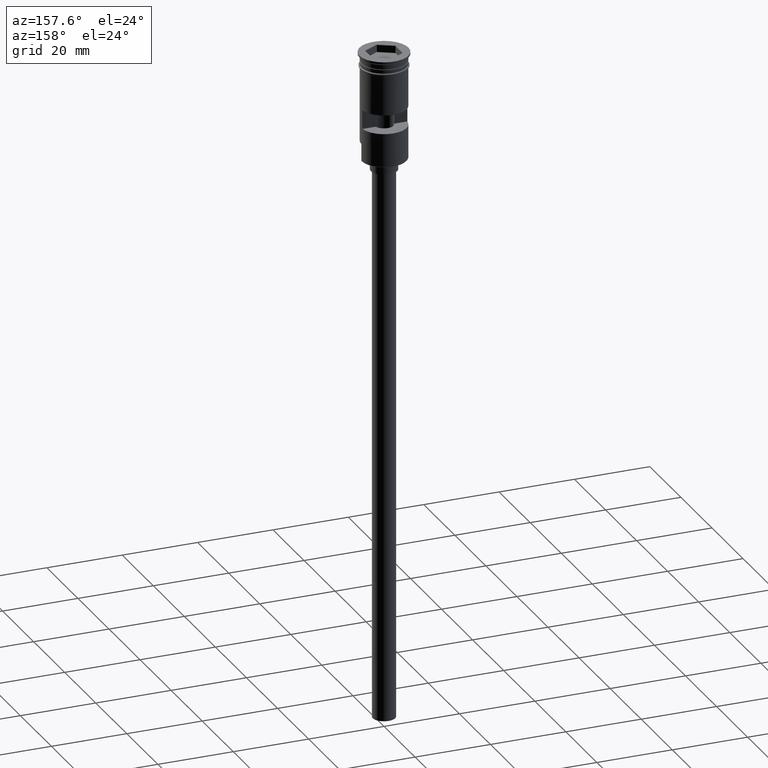
[diagram: clean part render]
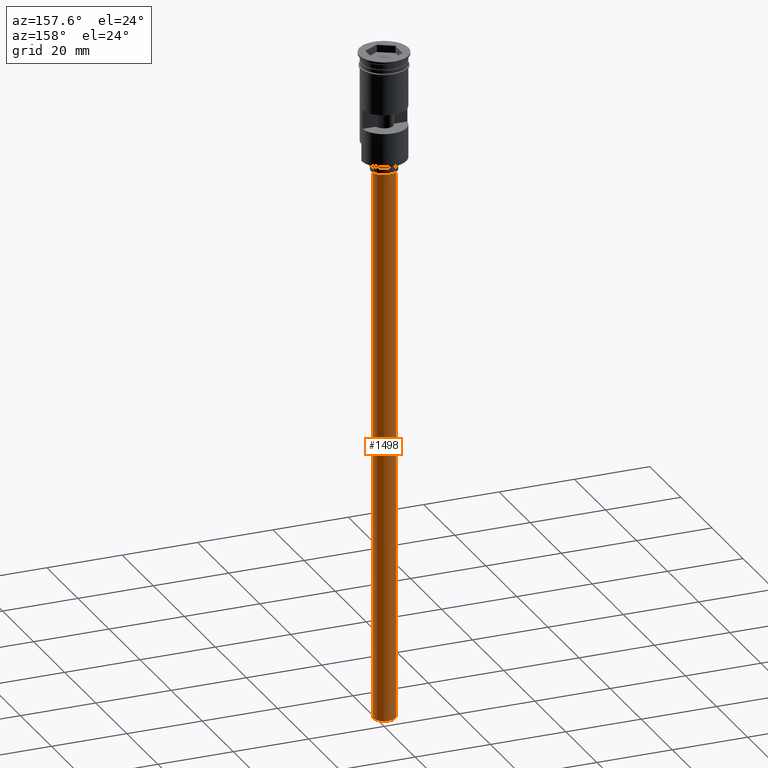
[diagram: same view with one face highlighted and labeled with its STEP entity id]
A machine part, auxiliary view. The second image highlights one B-rep face of the part: STEP entity #1498.
In plain terms, the highlighted cylindrical surface (edge-blend (fillet) strip) has radius 3 mm, axis along (-0, -0, 1).
Its self-contained STEP definition (entity closure, byte-faithful):
#12 = CYLINDRICAL_SURFACE ( 'NONE', #840, 3.000000000000000444 ) ;
#36 = FACE_OUTER_BOUND ( 'NONE', #852, .T. ) ;
#94 = LINE ( 'NONE', #582, #115 ) ;
#115 = VECTOR ( 'NONE', #1227, 1000.000000000000000 ) ;
#116 = CARTESIAN_POINT ( 'NONE',  ( 0.000000000000000000, 0.000000000000000000, -178.5000000000000000 ) ) ;
#126 = CARTESIAN_POINT ( 'NONE',  ( -3.000000000000000444, 3.673940397442060361E-16, -31.50000000000000000 ) ) ;
#130 = DIRECTION ( 'NONE',  ( 0.000000000000000000, 0.000000000000000000, -1.000000000000000000 ) ) ;
#183 = VECTOR ( 'NONE', #841, 1000.000000000000000 ) ;
#330 = ORIENTED_EDGE ( 'NONE', *, *, #1382, .T. ) ;
#375 = VERTEX_POINT ( 'NONE', #126 ) ;
#382 = DIRECTION ( 'NONE',  ( -0.000000000000000000, -0.000000000000000000, 1.000000000000000000 ) ) ;
#466 = CIRCLE ( 'NONE', #639, 3.000000000000000444 ) ;
#467 = ORIENTED_EDGE ( 'NONE', *, *, #781, .F. ) ;
#582 = CARTESIAN_POINT ( 'NONE',  ( 3.000000000000000444, 0.000000000000000000, -178.5000000000000000 ) ) ;
#639 = AXIS2_PLACEMENT_3D ( 'NONE', #116, #130, #739 ) ;
#649 = CARTESIAN_POINT ( 'NONE',  ( 3.000000000000000444, 0.000000000000000000, -31.50000000000000000 ) ) ;
#739 = DIRECTION ( 'NONE',  ( -1.000000000000000000, 0.000000000000000000, 0.000000000000000000 ) ) ;
#748 = VERTEX_POINT ( 'NONE', #1596 ) ;
#781 = EDGE_CURVE ( 'NONE', #1004, #1454, #94, .T. ) ;
#816 = EDGE_CURVE ( 'NONE', #748, #375, #1594, .T. ) ;
#840 = AXIS2_PLACEMENT_3D ( 'NONE', #1508, #382, #1368 ) ;
#841 = DIRECTION ( 'NONE',  ( -0.000000000000000000, -0.000000000000000000, 1.000000000000000000 ) ) ;
#852 = EDGE_LOOP ( 'NONE', ( #1262, #1486, #330, #467 ) ) ;
#857 = CARTESIAN_POINT ( 'NONE',  ( 0.000000000000000000, 0.000000000000000000, -31.50000000000000000 ) ) ;
#1004 = VERTEX_POINT ( 'NONE', #1537 ) ;
#1042 = AXIS2_PLACEMENT_3D ( 'NONE', #857, #1450, #1580 ) ;
#1227 = DIRECTION ( 'NONE',  ( -0.000000000000000000, -0.000000000000000000, 1.000000000000000000 ) ) ;
#1262 = ORIENTED_EDGE ( 'NONE', *, *, #1265, .F. ) ;
#1265 = EDGE_CURVE ( 'NONE', #748, #1004, #466, .T. ) ;
#1358 = CIRCLE ( 'NONE', #1042, 3.000000000000000444 ) ;
#1368 = DIRECTION ( 'NONE',  ( 1.000000000000000000, 0.000000000000000000, 0.000000000000000000 ) ) ;
#1382 = EDGE_CURVE ( 'NONE', #375, #1454, #1358, .T. ) ;
#1450 = DIRECTION ( 'NONE',  ( 0.000000000000000000, 0.000000000000000000, -1.000000000000000000 ) ) ;
#1454 = VERTEX_POINT ( 'NONE', #649 ) ;
#1486 = ORIENTED_EDGE ( 'NONE', *, *, #816, .T. ) ;
#1498 = ADVANCED_FACE ( 'NONE', ( #36 ), #12, .T. ) ;
#1508 = CARTESIAN_POINT ( 'NONE',  ( 0.000000000000000000, 0.000000000000000000, -178.5000000000000000 ) ) ;
#1537 = CARTESIAN_POINT ( 'NONE',  ( 3.000000000000000444, 0.000000000000000000, -178.5000000000000000 ) ) ;
#1566 = CARTESIAN_POINT ( 'NONE',  ( -3.000000000000000444, 3.673940397442060361E-16, -178.5000000000000000 ) ) ;
#1580 = DIRECTION ( 'NONE',  ( -1.000000000000000000, 0.000000000000000000, 0.000000000000000000 ) ) ;
#1594 = LINE ( 'NONE', #1566, #183 ) ;
#1596 = CARTESIAN_POINT ( 'NONE',  ( -3.000000000000000444, 3.673940397442060361E-16, -178.5000000000000000 ) ) ;